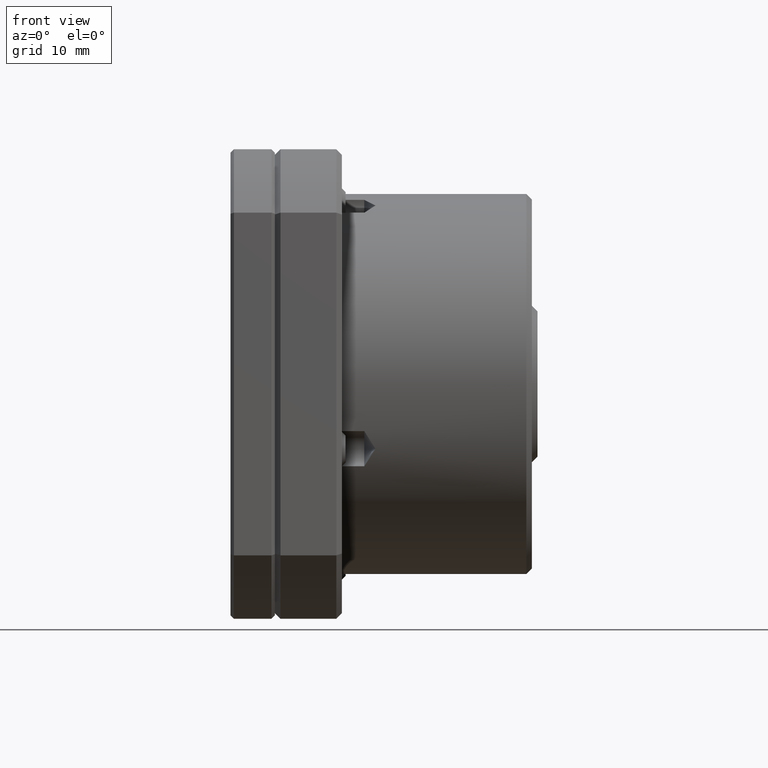
[diagram: clean part render]
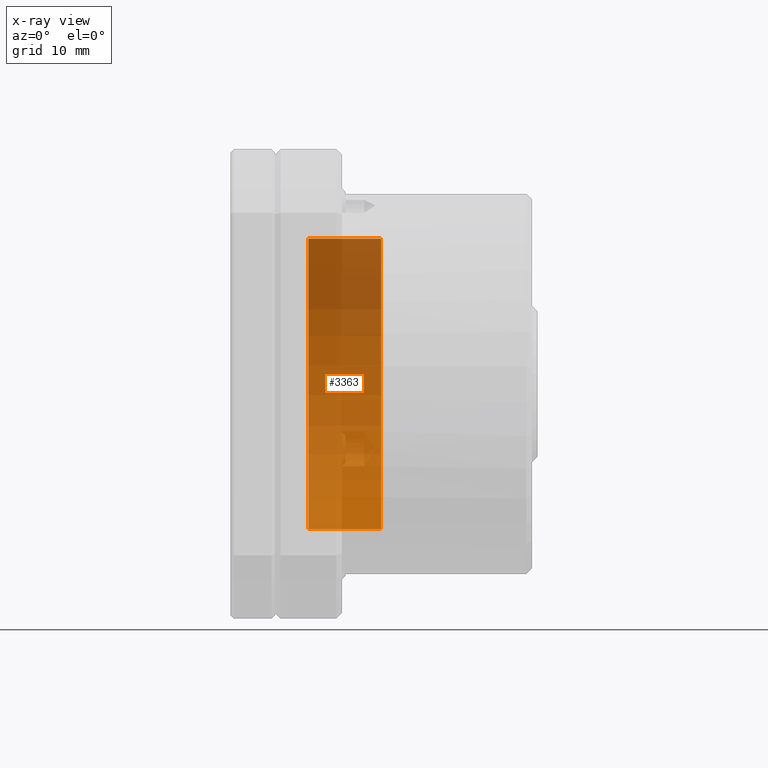
[diagram: x-ray — body ghosted, one internal face saturated and labeled with its STEP entity id]
A machine part, front view, then the same camera in x-ray: the body is ghosted and one INTERNAL B-rep face — a face not visible from any outside direction — is saturated and labeled: STEP entity #3363.
In plain terms, the highlighted cylindrical surface (partial cylindrical patch) has radius 13 mm, axis along (-1, 0, 0).
Its self-contained STEP definition (entity closure, byte-faithful):
#413 = ORIENTED_EDGE ( 'NONE', *, *, #17326, .T. ) ;
#456 = AXIS2_PLACEMENT_3D ( 'NONE', #12082, #3201, #13556 ) ;
#836 = EDGE_LOOP ( 'NONE', ( #5155, #9065, #413, #15000, #9537, #16181 ) ) ;
#965 = DIRECTION ( 'NONE',  ( 0.0000000000000000000, 0.0000000000000000000, 1.000000000000000000 ) ) ;
#1359 = CARTESIAN_POINT ( 'NONE',  ( 9.499999999999987600, 0.0000000000000000000, 0.0000000000000000000 ) ) ;
#1573 = DIRECTION ( 'NONE',  ( -1.000000000000000000, 0.0000000000000000000, 0.0000000000000000000 ) ) ;
#1647 = LINE ( 'NONE', #4533, #13021 ) ;
#2875 = DIRECTION ( 'NONE',  ( 0.0000000000000000000, 0.0000000000000000000, 1.000000000000000000 ) ) ;
#3102 = CARTESIAN_POINT ( 'NONE',  ( 9.499999999999987600, 0.0000000000000000000, 0.0000000000000000000 ) ) ;
#3130 = VERTEX_POINT ( 'NONE', #12305 ) ;
#3201 = DIRECTION ( 'NONE',  ( 1.000000000000000000, -0.0000000000000000000, -0.0000000000000000000 ) ) ;
#3324 = VERTEX_POINT ( 'NONE', #10519 ) ;
#3363 = ADVANCED_FACE ( 'NONE', ( #18736 ), #18262, .T. ) ;
#3857 = VERTEX_POINT ( 'NONE', #5766 ) ;
#4363 = CIRCLE ( 'NONE', #18482, 13.00000000000000000 ) ;
#4533 = CARTESIAN_POINT ( 'NONE',  ( -62.36252019386109400, 1.592040838891559100E-015, -13.00000000000000000 ) ) ;
#4615 = DIRECTION ( 'NONE',  ( 0.0000000000000000000, 0.0000000000000000000, 1.000000000000000000 ) ) ;
#5155 = ORIENTED_EDGE ( 'NONE', *, *, #7146, .T. ) ;
#5189 = LINE ( 'NONE', #15376, #9568 ) ;
#5766 = CARTESIAN_POINT ( 'NONE',  ( 2.999999999999981800, 0.0000000000000000000, 13.00000000000000000 ) ) ;
#7146 = EDGE_CURVE ( 'NONE', #3130, #14123, #8914, .T. ) ;
#7196 = VERTEX_POINT ( 'NONE', #16284 ) ;
#7203 = CARTESIAN_POINT ( 'NONE',  ( 9.499999999999987600, 12.96201927929427600, -0.9930036269840339900 ) ) ;
#7374 = CIRCLE ( 'NONE', #18362, 13.00000000000000000 ) ;
#7922 = CARTESIAN_POINT ( 'NONE',  ( 9.499999999999987600, 1.592040838891559100E-015, -13.00000000000000000 ) ) ;
#8914 = CIRCLE ( 'NONE', #16653, 13.00000000000000000 ) ;
#9049 = AXIS2_PLACEMENT_3D ( 'NONE', #10194, #10133, #10154 ) ;
#9065 = ORIENTED_EDGE ( 'NONE', *, *, #13087, .T. ) ;
#9320 = EDGE_CURVE ( 'NONE', #7196, #3324, #10935, .T. ) ;
#9485 = EDGE_CURVE ( 'NONE', #3130, #3857, #5189, .T. ) ;
#9537 = ORIENTED_EDGE ( 'NONE', *, *, #12432, .T. ) ;
#9568 = VECTOR ( 'NONE', #13970, 1000.000000000000000 ) ;
#9909 = DIRECTION ( 'NONE',  ( 1.000000000000000000, -0.0000000000000000000, -0.0000000000000000000 ) ) ;
#10133 = DIRECTION ( 'NONE',  ( -1.000000000000000000, 0.0000000000000000000, 0.0000000000000000000 ) ) ;
#10154 = DIRECTION ( 'NONE',  ( 0.0000000000000000000, 0.0000000000000000000, 1.000000000000000000 ) ) ;
#10194 = CARTESIAN_POINT ( 'NONE',  ( -62.36252019386109400, 0.0000000000000000000, 0.0000000000000000000 ) ) ;
#10519 = CARTESIAN_POINT ( 'NONE',  ( 2.999999999999981800, 12.96201927929427600, -0.9930036269840337700 ) ) ;
#10935 = CIRCLE ( 'NONE', #456, 13.00000000000000000 ) ;
#11418 = VERTEX_POINT ( 'NONE', #7922 ) ;
#11755 = DIRECTION ( 'NONE',  ( -1.000000000000000000, 0.0000000000000000000, 0.0000000000000000000 ) ) ;
#12082 = CARTESIAN_POINT ( 'NONE',  ( 2.999999999999981800, 0.0000000000000000000, 0.0000000000000000000 ) ) ;
#12305 = CARTESIAN_POINT ( 'NONE',  ( 9.499999999999987600, 0.0000000000000000000, 13.00000000000000000 ) ) ;
#12432 = EDGE_CURVE ( 'NONE', #3324, #3857, #4363, .T. ) ;
#13021 = VECTOR ( 'NONE', #1573, 1000.000000000000000 ) ;
#13087 = EDGE_CURVE ( 'NONE', #14123, #11418, #7374, .T. ) ;
#13455 = DIRECTION ( 'NONE',  ( -1.000000000000000000, 0.0000000000000000000, 0.0000000000000000000 ) ) ;
#13556 = DIRECTION ( 'NONE',  ( 0.0000000000000000000, 8.881784197001252300E-016, 1.000000000000000000 ) ) ;
#13970 = DIRECTION ( 'NONE',  ( -1.000000000000000000, 0.0000000000000000000, 0.0000000000000000000 ) ) ;
#14123 = VERTEX_POINT ( 'NONE', #7203 ) ;
#15000 = ORIENTED_EDGE ( 'NONE', *, *, #9320, .T. ) ;
#15376 = CARTESIAN_POINT ( 'NONE',  ( -62.36252019386109400, 0.0000000000000000000, 13.00000000000000000 ) ) ;
#16181 = ORIENTED_EDGE ( 'NONE', *, *, #9485, .F. ) ;
#16284 = CARTESIAN_POINT ( 'NONE',  ( 2.999999999999981800, 1.592040838891559100E-015, -13.00000000000000000 ) ) ;
#16653 = AXIS2_PLACEMENT_3D ( 'NONE', #1359, #11755, #2875 ) ;
#17326 = EDGE_CURVE ( 'NONE', #11418, #7196, #1647, .T. ) ;
#18262 = CYLINDRICAL_SURFACE ( 'NONE', #9049, 13.00000000000000000 ) ;
#18362 = AXIS2_PLACEMENT_3D ( 'NONE', #3102, #13455, #4615 ) ;
#18482 = AXIS2_PLACEMENT_3D ( 'NONE', #18659, #9909, #965 ) ;
#18659 = CARTESIAN_POINT ( 'NONE',  ( 2.999999999999981800, 0.0000000000000000000, 0.0000000000000000000 ) ) ;
#18736 = FACE_OUTER_BOUND ( 'NONE', #836, .T. ) ;